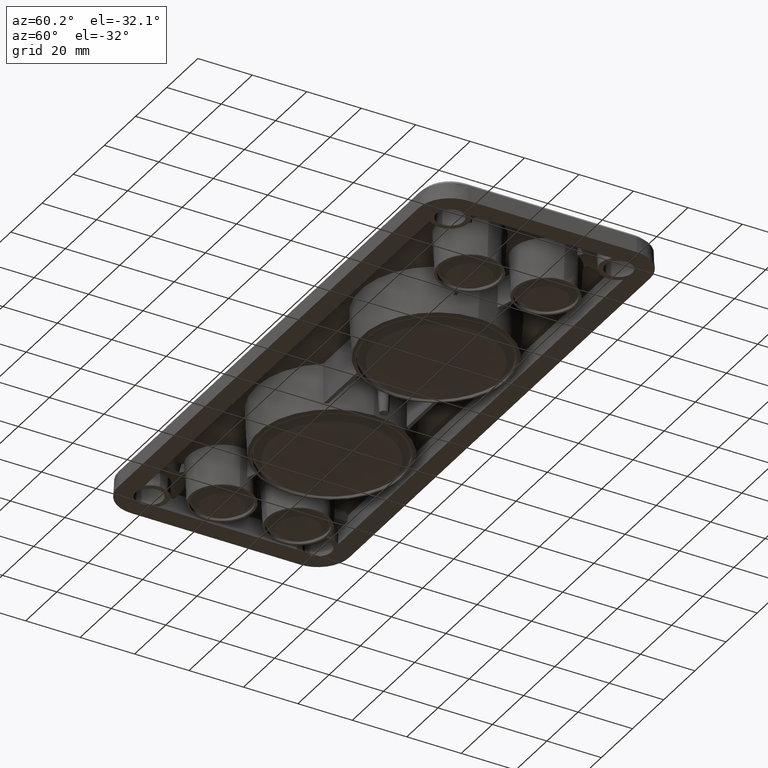
[diagram: clean part render]
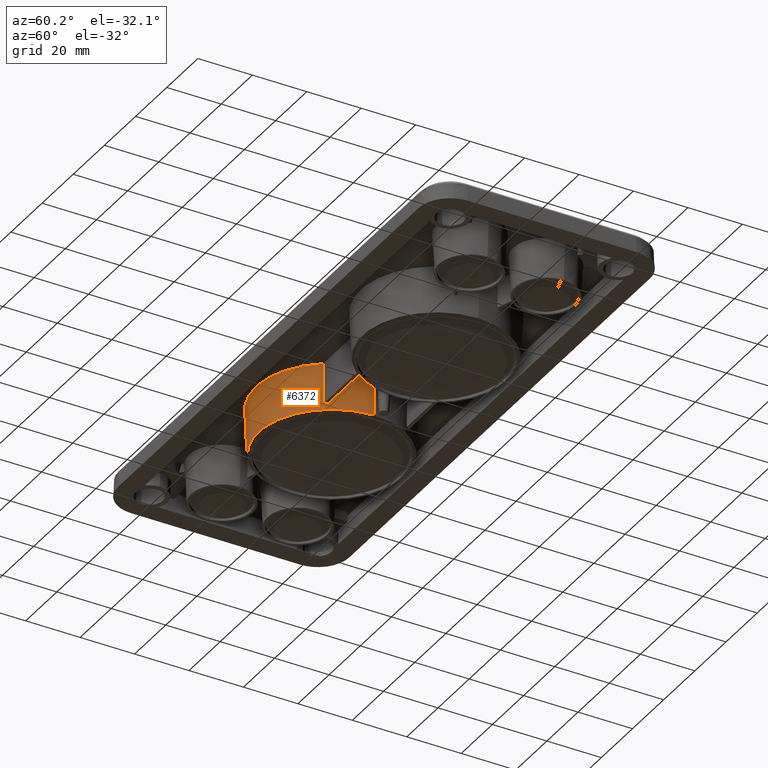
[diagram: same view with one face highlighted and labeled with its STEP entity id]
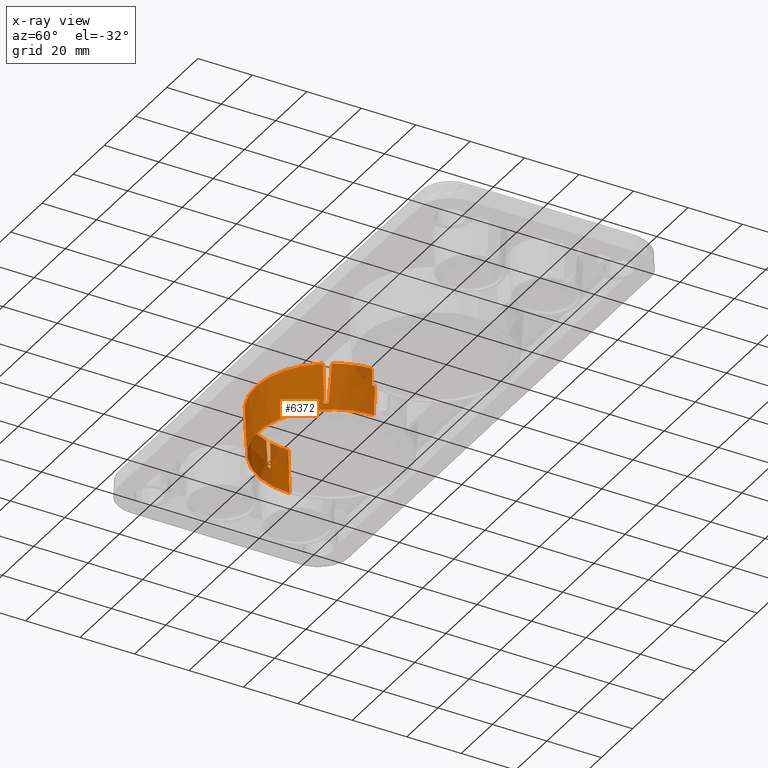
[diagram: x-ray of the same camera — body ghosted, the highlighted face saturated]
A machine part, auxiliary view. The second image highlights one B-rep face of the part: STEP entity #6372.
The next image is the same camera in x-ray: the body ghosted, the highlighted face saturated — about 9% of this face is hidden behind the body in this view.
In plain terms, the highlighted conical surface has half-angle 3 deg.
Its self-contained STEP definition (entity closure, byte-faithful):
#195 = CARTESIAN_POINT ( 'NONE',  ( -5.859470803397060800, -1.022276522219553100, 3.000000000000025300 ) ) ;
#205 = CARTESIAN_POINT ( 'NONE',  ( -60.41296684834823300, -7.236870346765376100, 6.999999999999991100 ) ) ;
#504 = EDGE_LOOP ( 'NONE', ( #3114, #3417, #10101, #2918, #5119, #3750, #7161, #3608, #2600, #612, #10185, #3869, #5097, #1499 ) ) ;
#544 = CARTESIAN_POINT ( 'NONE',  ( -33.50000000000000000, 0.0000000000000000000, -9.701096372196293100 ) ) ;
#564 = CIRCLE ( 'NONE', #10312, 26.99371317933353300 ) ;
#612 = ORIENTED_EDGE ( 'NONE', *, *, #7228, .T. ) ;
#834 = B_SPLINE_CURVE_WITH_KNOTS ( 'NONE', 3,
 ( #3790, #8933, #9791, #8131 ),
 .UNSPECIFIED., .F., .F.,
 ( 4, 4 ),
 ( 0.0000000000000000000, 1.000000000000000000 ),
 .UNSPECIFIED. ) ;
#860 = LINE ( 'NONE', #5251, #2804 ) ;
#1030 = CARTESIAN_POINT ( 'NONE',  ( -5.655283980984484600, -1.162698076270637100, 6.999999999999995600 ) ) ;
#1070 = CARTESIAN_POINT ( 'NONE',  ( -9.706670609859985500, -14.01017520358681700, 2.049592789855839900 ) ) ;
#1198 = CARTESIAN_POINT ( 'NONE',  ( -11.06553704766481700, -15.22736205820435500, -7.499999999999951200 ) ) ;
#1273 = CARTESIAN_POINT ( 'NONE',  ( -10.49649655651697500, -14.34365308135971700, -7.499999999999990200 ) ) ;
#1282 = CARTESIAN_POINT ( 'NONE',  ( -20.21504656733360900, -24.63097851902371000, 6.999999999999985800 ) ) ;
#1319 = CARTESIAN_POINT ( 'NONE',  ( -59.75050435080142100, -8.820417432887914800, 3.633127335165956800 ) ) ;
#1359 = CARTESIAN_POINT ( 'NONE',  ( -42.52565431434658900, -26.48985946943922800, 6.999999999999984900 ) ) ;
#1369 = CARTESIAN_POINT ( 'NONE',  ( -59.71671001333511000, -7.782606477269872900, -3.000000000000002700 ) ) ;
#1417 = CARTESIAN_POINT ( 'NONE',  ( -5.961957268439215700, -0.9531734593201459700, 1.000000000000017500 ) ) ;
#1499 = ORIENTED_EDGE ( 'NONE', *, *, #10650, .T. ) ;
#1753 = B_SPLINE_CURVE_WITH_KNOTS ( 'NONE', 3,
 ( #7936, #5475, #6395, #9650, #1282, #2161, #2121, #2967, #8040, #3852, #1359, #7230, #3696, #8772, #9612, #3806, #4592, #7894 ),
 .UNSPECIFIED., .F., .F.,
 ( 4, 2, 2, 2, 2, 2, 2, 2, 4 ),
 ( 0.0000000000000000000, 0.1250000000000000000, 0.2500000000000000000, 0.3750000000000000000, 0.5000000000000000000, 0.6250000000000000000, 0.7500000000000000000, 0.8750000000000000000, 1.000000000000000000 ),
 .UNSPECIFIED. ) ;
#1881 = CARTESIAN_POINT ( 'NONE',  ( -60.41296684834823300, -7.236870346765376100, 6.999999999999991100 ) ) ;
#1921 = CARTESIAN_POINT ( 'NONE',  ( -60.21352335947215600, -7.299069261542784100, 3.633127335175010000 ) ) ;
#1935 = CARTESIAN_POINT ( 'NONE',  ( -5.945466123905849700, 3.804049033029222400E-017, 1.000000000000000000 ) ) ;
#2007 = FACE_OUTER_BOUND ( 'NONE', #504, .T. ) ;
#2018 = VERTEX_POINT ( 'NONE', #1881 ) ;
#2036 = CARTESIAN_POINT ( 'NONE',  ( -5.747882098526589300, -3.380271442458319800, 7.000000000000005300 ) ) ;
#2121 = CARTESIAN_POINT ( 'NONE',  ( -27.38468602769532700, -27.30893673383966600, 6.999999999999985800 ) ) ;
#2147 = CARTESIAN_POINT ( 'NONE',  ( -5.655283980984484600, -1.162698076270637100, 6.999999999999995600 ) ) ;
#2161 = CARTESIAN_POINT ( 'NONE',  ( -24.90288891270880000, -26.63202529785327500, 6.999999999999984900 ) ) ;
#2247 = DIRECTION ( 'NONE',  ( -0.0000000000000000000, -0.0000000000000000000, 1.000000000000000000 ) ) ;
#2371 = EDGE_CURVE ( 'NONE', #2373, #6044, #6768, .T. ) ;
#2373 = VERTEX_POINT ( 'NONE', #4679 ) ;
#2498 = CARTESIAN_POINT ( 'NONE',  ( -59.88148155513080400, -8.983179167336924600, 6.999999999999991100 ) ) ;
#2575 = CARTESIAN_POINT ( 'NONE',  ( -5.961957268439215700, -0.9531734593201459700, 1.000000000000017500 ) ) ;
#2600 = ORIENTED_EDGE ( 'NONE', *, *, #3676, .T. ) ;
#2793 = VERTEX_POINT ( 'NONE', #1030 ) ;
#2802 = VERTEX_POINT ( 'NONE', #10278 ) ;
#2804 = VECTOR ( 'NONE', #9468, 1000.000000000000100 ) ;
#2828 = B_SPLINE_CURVE_WITH_KNOTS ( 'NONE', 3,
 ( #1273, #8025, #1198, #3875 ),
 .UNSPECIFIED., .F., .F.,
 ( 4, 4 ),
 ( 0.0000000000000000000, 1.000000000000000000 ),
 .UNSPECIFIED. ) ;
#2914 = CARTESIAN_POINT ( 'NONE',  ( -6.506286820666423900, 0.0000000000000000000, -9.701096372196293100 ) ) ;
#2918 = ORIENTED_EDGE ( 'NONE', *, *, #9974, .T. ) ;
#2967 = CARTESIAN_POINT ( 'NONE',  ( -32.43933018196366200, -27.96515814455246100, 6.999999999999984900 ) ) ;
#3114 = ORIENTED_EDGE ( 'NONE', *, *, #5495, .F. ) ;
#3297 = VERTEX_POINT ( 'NONE', #1935 ) ;
#3383 = CARTESIAN_POINT ( 'NONE',  ( -5.655283980984484600, -1.162698076270637100, 6.999999999999995600 ) ) ;
#3410 = CARTESIAN_POINT ( 'NONE',  ( -60.41296684834823300, -7.236870346765376100, 6.999999999999991100 ) ) ;
#3417 = ORIENTED_EDGE ( 'NONE', *, *, #9869, .T. ) ;
#3608 = ORIENTED_EDGE ( 'NONE', *, *, #6100, .T. ) ;
#3624 = B_SPLINE_CURVE_WITH_KNOTS ( 'NONE', 3,
 ( #5811, #1070, #7577, #9435 ),
 .UNSPECIFIED., .F., .F.,
 ( 4, 4 ),
 ( 0.0000000000000000000, 1.000000000000000000 ),
 .UNSPECIFIED. ) ;
#3676 = EDGE_CURVE ( 'NONE', #6820, #2802, #834, .T. ) ;
#3696 = CARTESIAN_POINT ( 'NONE',  ( -49.36456063662220800, -23.05408437391647800, 6.999999999999984900 ) ) ;
#3720 = CARTESIAN_POINT ( 'NONE',  ( -8.206890691583748100, -11.91070545998377000, 7.000000000000006200 ) ) ;
#3738 = CARTESIAN_POINT ( 'NONE',  ( -59.88148155513080400, -8.983179167336924600, 6.999999999999991100 ) ) ;
#3750 = ORIENTED_EDGE ( 'NONE', *, *, #4261, .T. ) ;
#3790 = CARTESIAN_POINT ( 'NONE',  ( -11.36901819719879300, -15.65634691864029400, -7.499999999999983100 ) ) ;
#3806 = CARTESIAN_POINT ( 'NONE',  ( -57.90560722237238900, -13.69457654036835200, 6.999999999999983100 ) ) ;
#3852 = CARTESIAN_POINT ( 'NONE',  ( -40.05510101248121700, -27.20672235365535500, 6.999999999999984900 ) ) ;
#3869 = ORIENTED_EDGE ( 'NONE', *, *, #2371, .T. ) ;
#3875 = CARTESIAN_POINT ( 'NONE',  ( -11.36901819719879300, -15.65634691864029400, -7.499999999999983100 ) ) ;
#3987 = DIRECTION ( 'NONE',  ( 1.000000000000000000, 0.0000000000000000000, -2.570559247558304200E-016 ) ) ;
#3990 = CONICAL_SURFACE ( 'NONE', #4041, 27.86898055179239700, 0.05235987755982998000 ) ;
#4041 = AXIS2_PLACEMENT_3D ( 'NONE', #6892, #10159, #4412 ) ;
#4261 = EDGE_CURVE ( 'NONE', #2793, #8482, #5070, .T. ) ;
#4354 = VERTEX_POINT ( 'NONE', #2914 ) ;
#4369 = CARTESIAN_POINT ( 'NONE',  ( -5.945466123905850600, -0.3177878867153582900, 1.000000000000000900 ) ) ;
#4412 = DIRECTION ( 'NONE',  ( 1.000000000000000000, 0.0000000000000000000, 0.0000000000000000000 ) ) ;
#4465 = CARTESIAN_POINT ( 'NONE',  ( -59.81866609692001900, -7.421018917636558000, -2.999999999999988000 ) ) ;
#4469 = DIRECTION ( 'NONE',  ( 0.05233595624294393200, 0.0000000000000000000, 0.9986295347545739400 ) ) ;
#4592 = CARTESIAN_POINT ( 'NONE',  ( -59.05999774495130300, -11.39568364736431700, 6.999999999999986700 ) ) ;
#4679 = CARTESIAN_POINT ( 'NONE',  ( -59.49053255709444700, -8.499171977063470600, -2.999999999999992900 ) ) ;
#4818 = CARTESIAN_POINT ( 'NONE',  ( -59.81866609692001900, -7.421018917636558000, -2.999999999999988000 ) ) ;
#5070 = B_SPLINE_CURVE_WITH_KNOTS ( 'NONE', 3,
 ( #2147, #2036, #7918, #9672, #3720, #9558 ),
 .UNSPECIFIED., .F., .F.,
 ( 4, 2, 4 ),
 ( 0.0000000000000000000, 0.5000000000000000000, 1.000000000000000000 ),
 .UNSPECIFIED. ) ;
#5097 = ORIENTED_EDGE ( 'NONE', *, *, #10518, .T. ) ;
#5119 = ORIENTED_EDGE ( 'NONE', *, *, #9928, .T. ) ;
#5153 = LINE ( 'NONE', #5327, #7533 ) ;
#5251 = CARTESIAN_POINT ( 'NONE',  ( -61.36898055179239700, 3.412965782825239700E-015, 6.999999999999985800 ) ) ;
#5327 = CARTESIAN_POINT ( 'NONE',  ( -5.631019448207603700, 0.0000000000000000000, 6.999999999999985800 ) ) ;
#5443 = CARTESIAN_POINT ( 'NONE',  ( -11.36901819719879300, -15.65634691864029400, -7.499999999999983100 ) ) ;
#5475 = CARTESIAN_POINT ( 'NONE',  ( -12.27456471029396700, -18.23885926463669800, 6.999999999999984000 ) ) ;
#5495 = EDGE_CURVE ( 'NONE', #6111, #6278, #860, .T. ) ;
#5587 = EDGE_CURVE ( 'NONE', #6696, #2373, #8614, .T. ) ;
#5588 = B_SPLINE_CURVE_WITH_KNOTS ( 'NONE', 3,
 ( #9366, #4369, #10222, #2575 ),
 .UNSPECIFIED., .F., .F.,
 ( 4, 4 ),
 ( 0.0000000000000000000, 1.000000000000000000 ),
 .UNSPECIFIED. ) ;
#5731 = B_SPLINE_CURVE_WITH_KNOTS ( 'NONE', 3,
 ( #7070, #7761, #1921, #205 ),
 .UNSPECIFIED., .F., .F.,
 ( 4, 4 ),
 ( 0.0000000000000000000, 1.000000000000000000 ),
 .UNSPECIFIED. ) ;
#5811 = CARTESIAN_POINT ( 'NONE',  ( -9.308903446355762100, -13.83730192372937000, 6.999999999999998200 ) ) ;
#5814 = CARTESIAN_POINT ( 'NONE',  ( -61.04664018474385000, -4.880322740144228200, 6.999999999999984900 ) ) ;
#5863 = CARTESIAN_POINT ( 'NONE',  ( -5.961957268439215700, -0.9531734593201459700, 1.000000000000017500 ) ) ;
#6044 = VERTEX_POINT ( 'NONE', #4465 ) ;
#6100 = EDGE_CURVE ( 'NONE', #10553, #6820, #2828, .T. ) ;
#6111 = VERTEX_POINT ( 'NONE', #10574 ) ;
#6278 = VERTEX_POINT ( 'NONE', #7256 ) ;
#6311 = VERTEX_POINT ( 'NONE', #5863 ) ;
#6372 = ADVANCED_FACE ( 'NONE', ( #2007 ), #3990, .T. ) ;
#6395 = CARTESIAN_POINT ( 'NONE',  ( -14.03901464561210100, -20.11082145385965000, 6.999999999999985800 ) ) ;
#6407 = CARTESIAN_POINT ( 'NONE',  ( -10.49649655651697500, -14.34365308135971700, -7.499999999999990200 ) ) ;
#6696 = VERTEX_POINT ( 'NONE', #2498 ) ;
#6698 = EDGE_CURVE ( 'NONE', #8482, #10553, #3624, .T. ) ;
#6768 = B_SPLINE_CURVE_WITH_KNOTS ( 'NONE', 3,
 ( #9729, #8006, #1369, #4818 ),
 .UNSPECIFIED., .F., .F.,
 ( 4, 4 ),
 ( 0.0000000000000000000, 1.000000000000000000 ),
 .UNSPECIFIED. ) ;
#6820 = VERTEX_POINT ( 'NONE', #5443 ) ;
#6892 = CARTESIAN_POINT ( 'NONE',  ( -33.50000000000000000, 0.0000000000000000000, 6.999999999999985800 ) ) ;
#7070 = CARTESIAN_POINT ( 'NONE',  ( -59.81866609692001900, -7.421018917636558000, -2.999999999999988000 ) ) ;
#7161 = ORIENTED_EDGE ( 'NONE', *, *, #6698, .T. ) ;
#7228 = EDGE_CURVE ( 'NONE', #2802, #6696, #1753, .T. ) ;
#7230 = CARTESIAN_POINT ( 'NONE',  ( -47.18060307272714500, -24.41344281495772300, 6.999999999999984900 ) ) ;
#7256 = CARTESIAN_POINT ( 'NONE',  ( -61.36898055179239700, 2.047711839496634100E-015, 6.999999999999999100 ) ) ;
#7533 = VECTOR ( 'NONE', #4469, 1000.000000000000100 ) ;
#7577 = CARTESIAN_POINT ( 'NONE',  ( -10.10252054474207600, -14.17895891927865300, -2.783740543477481600 ) ) ;
#7761 = CARTESIAN_POINT ( 'NONE',  ( -60.01542215052606400, -7.360451828133363100, 0.2997940018416916400 ) ) ;
#7894 = CARTESIAN_POINT ( 'NONE',  ( -59.88148155513080400, -8.983179167336924600, 6.999999999999991100 ) ) ;
#7918 = CARTESIAN_POINT ( 'NONE',  ( -6.106641934980741500, -5.586610507599790100, 7.000000000000007100 ) ) ;
#7936 = CARTESIAN_POINT ( 'NONE',  ( -10.79653621379547200, -16.16269807627063300, 6.999999999999989300 ) ) ;
#8006 = CARTESIAN_POINT ( 'NONE',  ( -59.60730119737328900, -8.142092586858726800, -3.000000000000002700 ) ) ;
#8025 = CARTESIAN_POINT ( 'NONE',  ( -10.77453257272615700, -14.78955081884695800, -7.499999999999951200 ) ) ;
#8040 = CARTESIAN_POINT ( 'NONE',  ( -35.01170172914289900, -27.94440638830656100, 6.999999999999985800 ) ) ;
#8131 = CARTESIAN_POINT ( 'NONE',  ( -10.79653621379547200, -16.16269807627063300, 6.999999999999989300 ) ) ;
#8361 = B_SPLINE_CURVE_WITH_KNOTS ( 'NONE', 3,
 ( #1417, #195, #10120, #3383 ),
 .UNSPECIFIED., .F., .F.,
 ( 4, 4 ),
 ( 0.0000000000000000000, 1.000000000000000000 ),
 .UNSPECIFIED. ) ;
#8387 = CARTESIAN_POINT ( 'NONE',  ( -61.36898055179239700, 2.047711839496634100E-015, 6.999999999999999100 ) ) ;
#8482 = VERTEX_POINT ( 'NONE', #9187 ) ;
#8558 = EDGE_CURVE ( 'NONE', #4354, #3297, #5153, .T. ) ;
#8614 = B_SPLINE_CURVE_WITH_KNOTS ( 'NONE', 3,
 ( #3738, #1319, #10398, #10508 ),
 .UNSPECIFIED., .F., .F.,
 ( 4, 4 ),
 ( 0.0000000000000000000, 1.000000000000000000 ),
 .UNSPECIFIED. ) ;
#8674 = B_SPLINE_CURVE_WITH_KNOTS ( 'NONE', 3,
 ( #3410, #5814, #9225, #8387 ),
 .UNSPECIFIED., .F., .F.,
 ( 4, 4 ),
 ( 0.0000000000000000000, 1.000000000000000000 ),
 .UNSPECIFIED. ) ;
#8772 = CARTESIAN_POINT ( 'NONE',  ( -53.28290618725592500, -19.79423434485288500, 6.999999999999984900 ) ) ;
#8933 = CARTESIAN_POINT ( 'NONE',  ( -11.17772313110127800, -15.82454036186955000, -2.666666666666657600 ) ) ;
#9187 = CARTESIAN_POINT ( 'NONE',  ( -9.308903446355762100, -13.83730192372937000, 6.999999999999998200 ) ) ;
#9225 = CARTESIAN_POINT ( 'NONE',  ( -61.36898055179239700, -2.440257879718977600, 6.999999999999984900 ) ) ;
#9366 = CARTESIAN_POINT ( 'NONE',  ( -5.945466123905849700, 3.804049033029222400E-017, 1.000000000000000000 ) ) ;
#9435 = CARTESIAN_POINT ( 'NONE',  ( -10.49649655651697500, -14.34365308135971700, -7.499999999999990200 ) ) ;
#9468 = DIRECTION ( 'NONE',  ( -0.05233595624294393200, 6.409306129323723300E-018, 0.9986295347545739400 ) ) ;
#9558 = CARTESIAN_POINT ( 'NONE',  ( -9.308903446355762100, -13.83730192372937000, 6.999999999999998200 ) ) ;
#9612 = CARTESIAN_POINT ( 'NONE',  ( -55.01692557388986400, -17.89404941203656200, 6.999999999999984900 ) ) ;
#9650 = CARTESIAN_POINT ( 'NONE',  ( -18.00944232387604100, -23.30703141533470600, 6.999999999999984900 ) ) ;
#9672 = CARTESIAN_POINT ( 'NONE',  ( -7.336179528552360600, -9.851943025608580500, 7.000000000000006200 ) ) ;
#9729 = CARTESIAN_POINT ( 'NONE',  ( -59.49053255709444700, -8.499171977063470600, -2.999999999999992900 ) ) ;
#9791 = CARTESIAN_POINT ( 'NONE',  ( -10.98689491597752300, -15.99332475979561100, 2.166666666666663000 ) ) ;
#9869 = EDGE_CURVE ( 'NONE', #6111, #4354, #564, .T. ) ;
#9928 = EDGE_CURVE ( 'NONE', #6311, #2793, #8361, .T. ) ;
#9974 = EDGE_CURVE ( 'NONE', #3297, #6311, #5588, .T. ) ;
#10101 = ORIENTED_EDGE ( 'NONE', *, *, #8558, .T. ) ;
#10120 = CARTESIAN_POINT ( 'NONE',  ( -5.757243730942840400, -1.092118721304941000, 5.000000000000005300 ) ) ;
#10159 = DIRECTION ( 'NONE',  ( 0.0000000000000000000, -0.0000000000000000000, 1.000000000000000000 ) ) ;
#10185 = ORIENTED_EDGE ( 'NONE', *, *, #5587, .T. ) ;
#10222 = CARTESIAN_POINT ( 'NONE',  ( -5.950964268859814300, -0.6355757658410304800, 1.000000000000000900 ) ) ;
#10278 = CARTESIAN_POINT ( 'NONE',  ( -10.79653621379547200, -16.16269807627063300, 6.999999999999989300 ) ) ;
#10312 = AXIS2_PLACEMENT_3D ( 'NONE', #544, #2247, #3987 ) ;
#10398 = CARTESIAN_POINT ( 'NONE',  ( -59.62018706040009900, -8.659081409974223900, 0.2997940018326363800 ) ) ;
#10508 = CARTESIAN_POINT ( 'NONE',  ( -59.49053255709444700, -8.499171977063470600, -2.999999999999992900 ) ) ;
#10518 = EDGE_CURVE ( 'NONE', #6044, #2018, #5731, .T. ) ;
#10553 = VERTEX_POINT ( 'NONE', #6407 ) ;
#10574 = CARTESIAN_POINT ( 'NONE',  ( -60.49371317933358200, 3.305776444217259200E-015, -9.701096372196293100 ) ) ;
#10650 = EDGE_CURVE ( 'NONE', #2018, #6278, #8674, .T. ) ;